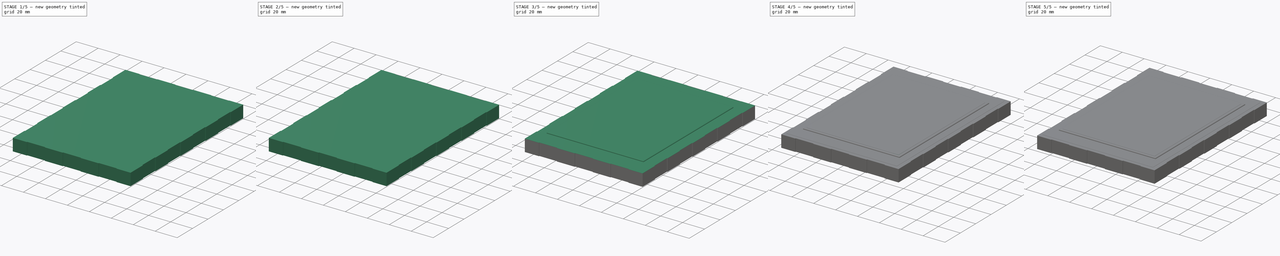
[diagram: build sequence overview — one tinted view per stage of 5, left to right]
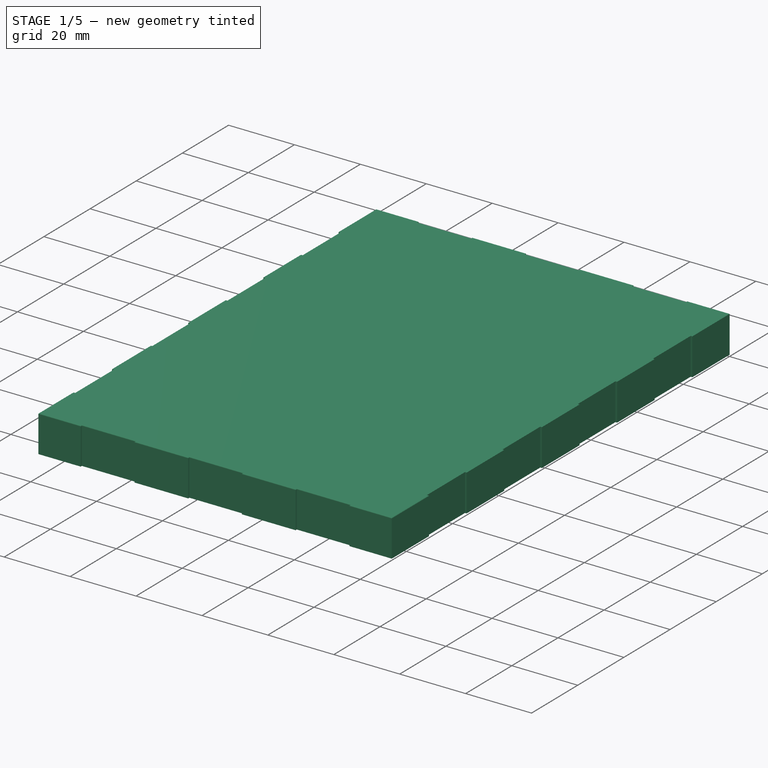
[diagram: stage 1 of 5 — iso view after this stage's code; geometry added in this stage tinted green]
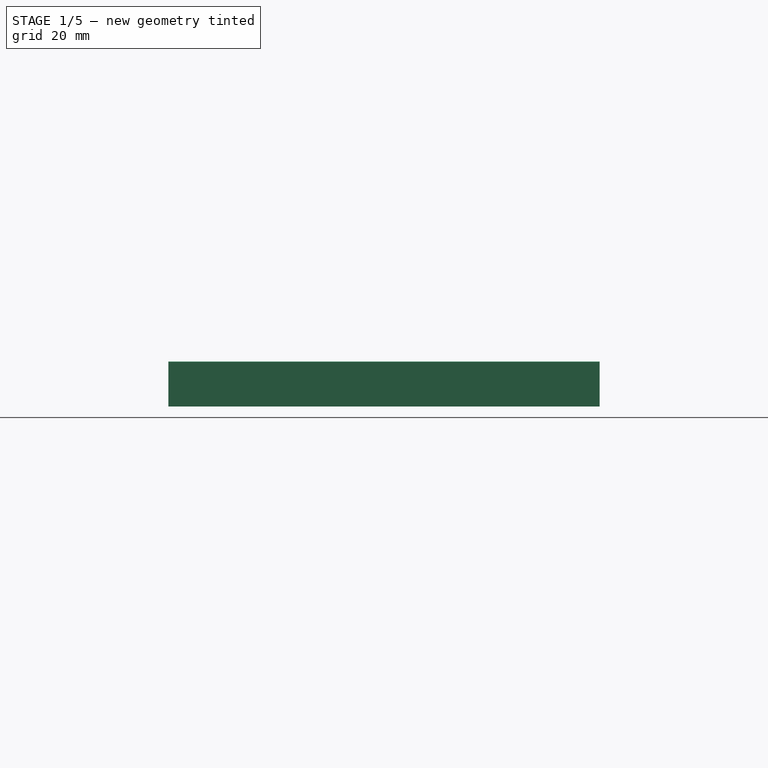
[diagram: stage 1 of 5 — front view after this stage's code; geometry added in this stage tinted green]
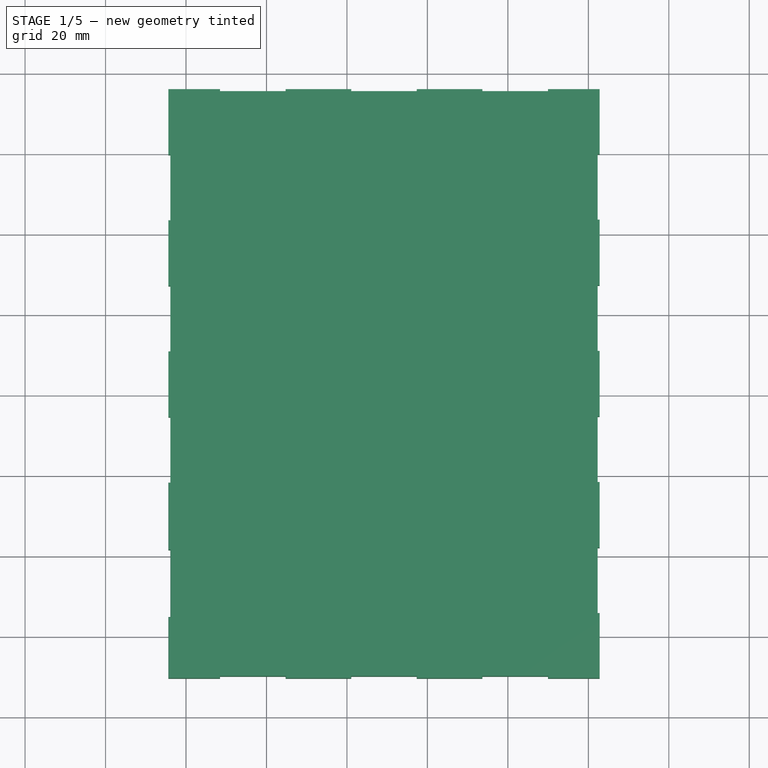
[diagram: stage 1 of 5 — top view after this stage's code; geometry added in this stage tinted green]
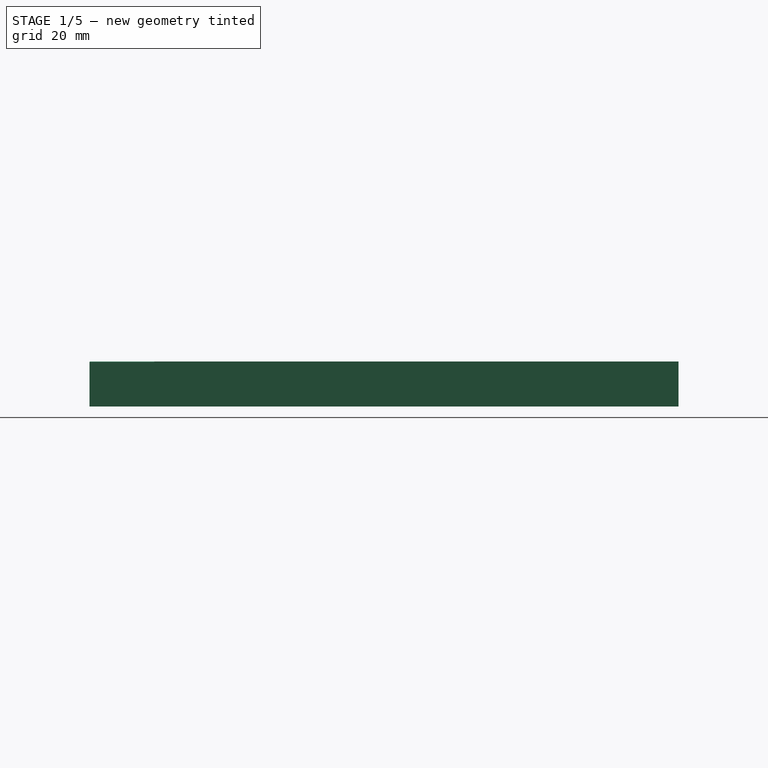
[diagram: stage 1 of 5 — right view after this stage's code; geometry added in this stage tinted green]
FCSTD DOCUMENT  (FreeCAD 0.17R11223 (Git))
Label: EA_eDIPTFT57-XXX_5
License: All rights reserved
LicenseURL: http://en.wikipedia.org/wiki/All_rights_reserved
objects: Part::Box×7, Part::Fillet×7, Sketcher::SketchObject×1, PartDesign::Pad×1, PartDesign::Body×1, Part::FeaturePython×1
note: 19 computed .brp shape members not serialized (recipe doc carries the construction recipe); baked Part::Feature solids carry a one-line shape summary decoded from their .brp

FEATURE [Sketcher::SketchObject] Sketch
  MapMode = 5
  Support = -> [XY_Plane]
  sketch-geometry (60):
    g0: LineSegment StartX=-11.54 StartY=16.05 StartZ=0 EndX=-11.54 EndY=15.55 EndZ=0
    g1: LineSegment StartX=-11.54 StartY=15.55 StartZ=0 EndX=4.76 EndY=15.55 EndZ=0
    g2: LineSegment StartX=4.76 StartY=15.55 StartZ=0 EndX=4.76 EndY=16.05 EndZ=0
    g3: LineSegment StartX=4.76 StartY=16.05 StartZ=0 EndX=21.06 EndY=16.05 EndZ=0
    g4: LineSegment StartX=21.06 StartY=16.05 StartZ=0 EndX=21.06 EndY=15.55 EndZ=0
    g5: LineSegment StartX=21.06 StartY=15.55 StartZ=0 EndX=37.36 EndY=15.55 EndZ=0
    g6: LineSegment StartX=37.36 StartY=15.55 StartZ=0 EndX=37.36 EndY=16.05 EndZ=0
    g7: LineSegment StartX=37.36 StartY=16.05 StartZ=0 EndX=53.66 EndY=16.05 EndZ=0
    g8: LineSegment StartX=53.66 StartY=16.05 StartZ=0 EndX=53.66 EndY=15.55 EndZ=0
    g9: LineSegment StartX=53.66 StartY=15.55 StartZ=0 EndX=69.96 EndY=15.55 EndZ=0
    g10: LineSegment StartX=69.96 StartY=15.55 StartZ=0 EndX=69.96 EndY=16.05 EndZ=0
    g11: LineSegment StartX=69.96 StartY=16.05 StartZ=0 EndX=82.81 EndY=16.05 EndZ=0
    g12: LineSegment StartX=82.81 StartY=16.05 StartZ=0 EndX=82.81 EndY=-0.1 EndZ=0
    g13: LineSegment StartX=82.81 StartY=-0.1 StartZ=0 EndX=82.31 EndY=-0.1 EndZ=0
    g14: LineSegment StartX=82.31 StartY=-0.1 StartZ=0 EndX=82.31 EndY=-16.4 EndZ=0
    g15: LineSegment StartX=82.31 StartY=-16.4 StartZ=0 EndX=82.81 EndY=-16.4 EndZ=0
    g16: LineSegment StartX=82.81 StartY=-16.4 StartZ=0 EndX=82.81 EndY=-32.7 EndZ=0
    g17: LineSegment StartX=82.81 StartY=-32.7 StartZ=0 EndX=82.31 EndY=-32.7 EndZ=0
    g18: LineSegment StartX=82.31 StartY=-32.7 StartZ=0 EndX=82.31 EndY=-49 EndZ=0
    g19: LineSegment StartX=82.31 StartY=-49 StartZ=0 EndX=82.81 EndY=-49 EndZ=0
    g20: LineSegment StartX=82.81 StartY=-49 StartZ=0 EndX=82.81 EndY=-65.3 EndZ=0
    g21: LineSegment StartX=82.81 StartY=-65.3 StartZ=0 EndX=82.31 EndY=-65.3 EndZ=0
    g22: LineSegment StartX=82.31 StartY=-65.3 StartZ=0 EndX=82.31 EndY=-81.6 EndZ=0
    g23: LineSegment StartX=82.31 StartY=-81.6 StartZ=0 EndX=82.81 EndY=-81.6 EndZ=0
    g24: LineSegment StartX=82.81 StartY=-81.6 StartZ=0 EndX=82.81 EndY=-97.9 EndZ=0
    g25: LineSegment StartX=82.81 StartY=-97.9 StartZ=0 EndX=82.31 EndY=-97.9 EndZ=0
    g26: LineSegment StartX=82.31 StartY=-97.9 StartZ=0 EndX=82.31 EndY=-114.2 EndZ=0
    g27: LineSegment StartX=82.31 StartY=-114.2 StartZ=0 EndX=82.81 EndY=-114.2 EndZ=0
    g28: LineSegment StartX=82.81 StartY=-114.2 StartZ=0 EndX=82.81 EndY=-130.35 EndZ=0
    g29: LineSegment StartX=82.81 StartY=-130.35 StartZ=0 EndX=69.96 EndY=-130.35 EndZ=0
    g30: LineSegment StartX=69.96 StartY=-130.35 StartZ=0 EndX=69.96 EndY=-129.85 EndZ=0
    g31: LineSegment StartX=69.96 StartY=-129.85 StartZ=0 EndX=53.66 EndY=-129.85 EndZ=0
    g32: LineSegment StartX=53.66 StartY=-129.85 StartZ=0 EndX=53.66 EndY=-130.35 EndZ=0
    g33: LineSegment StartX=53.66 StartY=-130.35 StartZ=0 EndX=37.36 EndY=-130.35 EndZ=0
    g34: LineSegment StartX=37.36 StartY=-130.35 StartZ=0 EndX=37.36 EndY=-129.85 EndZ=0
    g35: LineSegment StartX=37.36 StartY=-129.85 StartZ=0 EndX=21.06 EndY=-129.85 EndZ=0
    g36: LineSegment StartX=21.06 StartY=-129.85 StartZ=0 EndX=21.06 EndY=-130.35 EndZ=0
    g37: LineSegment StartX=21.06 StartY=-130.35 StartZ=0 EndX=4.76 EndY=-130.35 EndZ=0
    g38: LineSegment StartX=4.76 StartY=-130.35 StartZ=0 EndX=4.76 EndY=-129.85 EndZ=0
    g39: LineSegment StartX=4.76 StartY=-129.85 StartZ=0 EndX=-11.54 EndY=-129.85 EndZ=0
    g40: LineSegment StartX=-11.54 StartY=-129.85 StartZ=0 EndX=-11.54 EndY=-130.35 EndZ=0
    g41: LineSegment StartX=-11.54 StartY=-130.35 StartZ=0 EndX=-24.39 EndY=-130.35 EndZ=0
    g42: LineSegment StartX=-24.39 StartY=-130.35 StartZ=0 EndX=-24.39 EndY=-115.15 EndZ=0
    g43: LineSegment StartX=-24.39 StartY=-115.15 StartZ=0 EndX=-23.89 EndY=-115.15 EndZ=0
    g44: LineSegment StartX=-23.89 StartY=-115.15 StartZ=0 EndX=-23.89 EndY=-98.45 EndZ=0
    g45: LineSegment StartX=-23.89 StartY=-98.45 StartZ=0 EndX=-24.39 EndY=-98.45 EndZ=0
    g46: LineSegment StartX=-24.39 StartY=-98.45 StartZ=0 EndX=-24.39 EndY=-81.75 EndZ=0
    g47: LineSegment StartX=-24.39 StartY=-81.75 StartZ=0 EndX=-23.89 EndY=-81.75 EndZ=0
    g48: LineSegment StartX=-23.89 StartY=-81.75 StartZ=0 EndX=-23.89 EndY=-65.45 EndZ=0
    g49: LineSegment StartX=-23.89 StartY=-65.45 StartZ=0 EndX=-24.39 EndY=-65.45 EndZ=0
    g50: LineSegment StartX=-24.39 StartY=-65.45 StartZ=0 EndX=-24.39 EndY=-49.15 EndZ=0
    g51: LineSegment StartX=-24.39 StartY=-49.15 StartZ=0 EndX=-23.89 EndY=-49.15 EndZ=0
    g52: LineSegment StartX=-23.89 StartY=-49.15 StartZ=0 EndX=-23.89 EndY=-32.85 EndZ=0
    g53: LineSegment StartX=-23.89 StartY=-32.85 StartZ=0 EndX=-24.39 EndY=-32.85 EndZ=0
    g54: LineSegment StartX=-24.39 StartY=-32.85 StartZ=0 EndX=-24.39 EndY=-16.55 EndZ=0
    g55: LineSegment StartX=-24.39 StartY=-16.55 StartZ=0 EndX=-23.89 EndY=-16.55 EndZ=0
    g56: LineSegment StartX=-23.89 StartY=-16.55 StartZ=0 EndX=-23.89 EndY=-0.25 EndZ=0
    g57: LineSegment StartX=-23.89 StartY=-0.25 StartZ=0 EndX=-24.39 EndY=-0.25 EndZ=0
    g58: LineSegment StartX=-24.39 StartY=16.05 StartZ=0 EndX=-11.54 EndY=16.05 EndZ=0
    g59: LineSegment StartX=-24.39 StartY=-0.25 StartZ=0 EndX=-24.39 EndY=16.05 EndZ=0
  constraints (181):
    c: Vertical(g0)
    c: Coincident(g0,g1)
    c: Horizontal(g1)
    c: Coincident(g1,g2)
    c: Vertical(g2)
    c: Coincident(g2,g3)
    c: Horizontal(g3)
    c: Coincident(g3,g4)
    c: Vertical(g4)
    c: Coincident(g4,g5)
    c: Horizontal(g5)
    c: Coincident(g5,g6)
    c: Vertical(g6)
    c: Coincident(g6,g7)
    c: Horizontal(g7)
    c: Coincident(g7,g8)
    c: Vertical(g8)
    c: Coincident(g8,g9)
    c: Horizontal(g9)
    c: Coincident(g9,g10)
    c: Vertical(g10)
    c: Coincident(g10,g11)
    c: Horizontal(g11)
    c: Coincident(g11,g12)
    c: Vertical(g12)
    c: Coincident(g12,g13)
    c: Horizontal(g13)
    c: Coincident(g13,g14)
    c: Vertical(g14)
    c: Coincident(g14,g15)
    c: Horizontal(g15)
    c: Coincident(g15,g16)
    c: Vertical(g16)
    c: Coincident(g16,g17)
    c: Horizontal(g17)
    c: Coincident(g17,g18)
    c: Vertical(g18)
    c: Coincident(g18,g19)
    c: Horizontal(g19)
    c: Coincident(g19,g20)
    c: Vertical(g20)
    c: Coincident(g20,g21)
    c: Horizontal(g21)
    c: Coincident(g21,g22)
    c: Vertical(g22)
    c: Coincident(g22,g23)
    c: Horizontal(g23)
    c: Coincident(g23,g24)
    c: Vertical(g24)
    c: Coincident(g24,g25)
    c: Horizontal(g25)
    c: Coincident(g25,g26)
    c: Vertical(g26)
    c: Coincident(g26,g27)
    c: Horizontal(g27)
    c: Coincident(g27,g28)
    c: Vertical(g28)
    c: Coincident(g28,g29)
    c: Horizontal(g29)
    c: Coincident(g29,g30)
    c: Vertical(g30)
    c: Coincident(g30,g31)
    c: Horizontal(g31)
    c: Coincident(g31,g32)
    c: Vertical(g32)
    c: Coincident(g32,g33)
    c: Horizontal(g33)
    c: Coincident(g33,g34)
    c: Vertical(g34)
    c: Coincident(g34,g35)
    c: Horizontal(g35)
    c: Coincident(g35,g36)
    c: Vertical(g36)
    c: Coincident(g36,g37)
    c: Horizontal(g37)
    c: Coincident(g37,g38)
    c: Vertical(g38)
    c: Coincident(g38,g39)
    c: Horizontal(g39)
    c: Coincident(g39,g40)
    c: Vertical(g40)
    c: Coincident(g40,g41)
    c: Horizontal(g41)
    c: Coincident(g41,g42)
    c: Vertical(g42)
    c: Coincident(g42,g43)
    c: Horizontal(g43)
    c: Coincident(g43,g44)
    c: Vertical(g44)
    c: Coincident(g44,g45)
    c: Horizontal(g45)
    c: Coincident(g45,g46)
    c: Vertical(g46)
    c: Coincident(g46,g47)
    c: Horizontal(g47)
    c: Coincident(g47,g48)
    c: Vertical(g48)
    c: Coincident(g48,g49)
    c: Horizontal(g49)
    c: Coincident(g49,g50)
    c: Vertical(g50)
    c: Coincident(g50,g51)
    c: Horizontal(g51)
    c: Coincident(g51,g52)
    c: Vertical(g52)
    c: Coincident(g52,g53)
    c: Horizontal(g53)
    c: Coincident(g53,g54)
    c: Vertical(g54)
    c: Coincident(g54,g55)
    c: Horizontal(g55)
    c: Coincident(g55,g56)
    c: Vertical(g56)
    c: Coincident(g56,g57)
    c: Horizontal(g57)
    c: DistanceX(g41,g28) = 107.2
    c: DistanceY(g28,g11) = 146.4
    c: DistanceX(g27,g27) = 0.5
    c: DistanceY(g26,g26) = 16.3
    c: DistanceX(g25,g25) = 0.5
    c: DistanceY(g24,g23) = 16.3
    c: DistanceX(g23,g23) = 0.5
    c: DistanceX(g21,g21) = 0.5
    c: DistanceY(g22,g22) = 16.3
    c: DistanceY(g20,g20) = 16.3
    c: DistanceX(g19,g19) = 0.5
    c: DistanceY(g18,g18) = 16.3
    c: DistanceX(g17,g17) = 0.5
    c: DistanceY(g16,g16) = 16.3
    c: DistanceX(g15,g15) = 0.5
    c: DistanceY(g14,g14) = 16.3
    c: DistanceY(g12,g12) = 16.15
    c: DistanceY(g30,g30) = 0.5
    c: DistanceY(g32,g32) = 0.5
    c: DistanceX(g31,g31) = 16.3
    c: DistanceX(g33,g33) = 16.3
    c: DistanceX(g35,g35) = 16.3
    c: DistanceY(g34,g34) = 0.5
    c: DistanceY(g36,g36) = 0.5
    c: DistanceX(g37,g37) = 16.3
    c: DistanceY(g38,g38) = 0.5
    c: DistanceY(g40,g40) = 0.5
    c: DistanceX(g39,g39) = 16.3
    c: DistanceX(g41,g41) = 12.85
    c: DistanceY(g44,g44) = 16.7
    c: DistanceY(g46,g46) = 16.7
    c: DistanceY(g48,g48) = 16.3
    c: DistanceY(g50,g50) = 16.3
    c: DistanceY(g52,g52) = 16.3
    c: DistanceY(g54,g54) = 16.3
    c: DistanceY(g56,g56) = 16.3
    c: DistanceY(g57,g58) = 16.3
    c: DistanceY(g41,g58) = 146.4
    c: DistanceY(g10,g10) = 0.5
    c: DistanceX(g9,g9) = 16.3
    c: DistanceY(g8,g8) = 0.5
    c: DistanceY(g6,g6) = 0.5
    c: DistanceY(g4,g4) = 0.5
    c: DistanceY(g2,g2) = 0.5
    c: DistanceX(g7,g7) = 16.3
    c: DistanceX(g5,g5) = 16.3
    c: DistanceX(g3,g3) = 16.3
    c: DistanceX(g1,g1) = 16.3
    c: DistanceY(g0,g0) = 0.5
    c: Coincident(g58,g0)
    c: DistanceY(g-1,g58) = 16.05
    c: DistanceX(g13,g13) = 0.5
    c: DistanceX(g43,g43) = 0.5
    c: DistanceX(g45,g45) = 0.5
    c: DistanceX(g47,g47) = 0.5
    c: DistanceX(g49,g49) = 0.5
    c: DistanceX(g51,g51) = 0.5
    c: DistanceX(g53,g53) = 0.5
    c: DistanceX(g55,g55) = 0.5
    c: DistanceX(g57,g57) = 0.5
    c: Coincident(g59,g57)
    c: Vertical(g59)
    c: DistanceX(g59,g58) = 0
    c: DistanceY(g59,g58) = 0
    c: DistanceX(g58,g58) = 12.85
    c: DistanceX(g58,g-1) = 24.39
FEATURE [PartDesign::Pad] Pad
  Length = 11.2
  Length2 = 100
  Profile = -> Sketch
  Type = 0
FEATURE [Part::Fillet] Fillet001
  Base = -> Pad
  Edges = 8 edges r=0.2: [Edge121,Edge124,Edge127,Edge130,Edge133,Edge136,Edge139,Edge142]
FEATURE [Part::Fillet] Fillet002
  Base = -> Fillet001
  Edges = 12 edges r=0.2: [Edge6,Edge88,Edge90,Edge92,Edge94,Edge96,Edge98,Edge100,Edge102,Edge104,Edge106,Edge108]
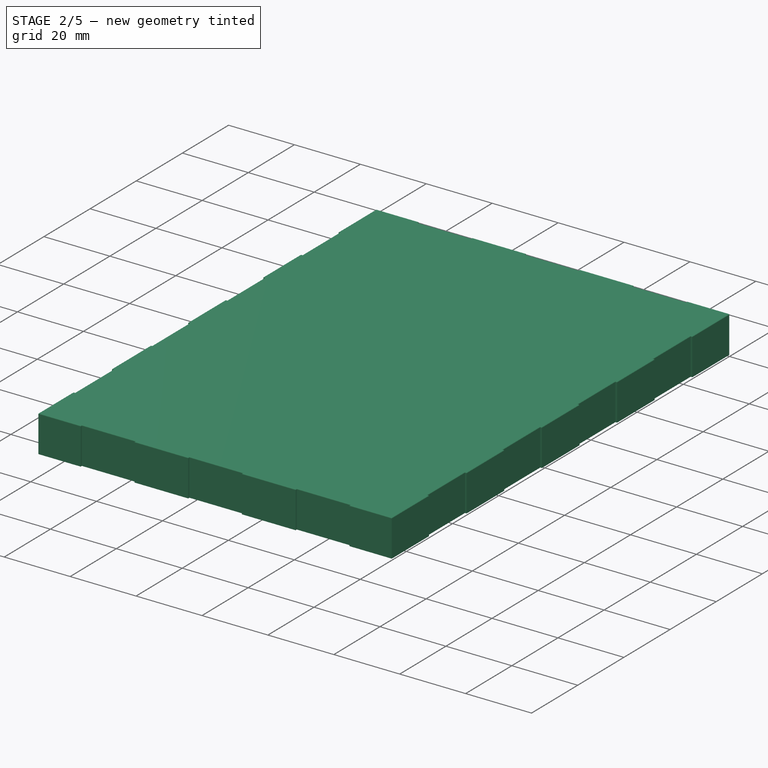
[diagram: stage 2 of 5 — iso view after this stage's code; geometry added in this stage tinted green]
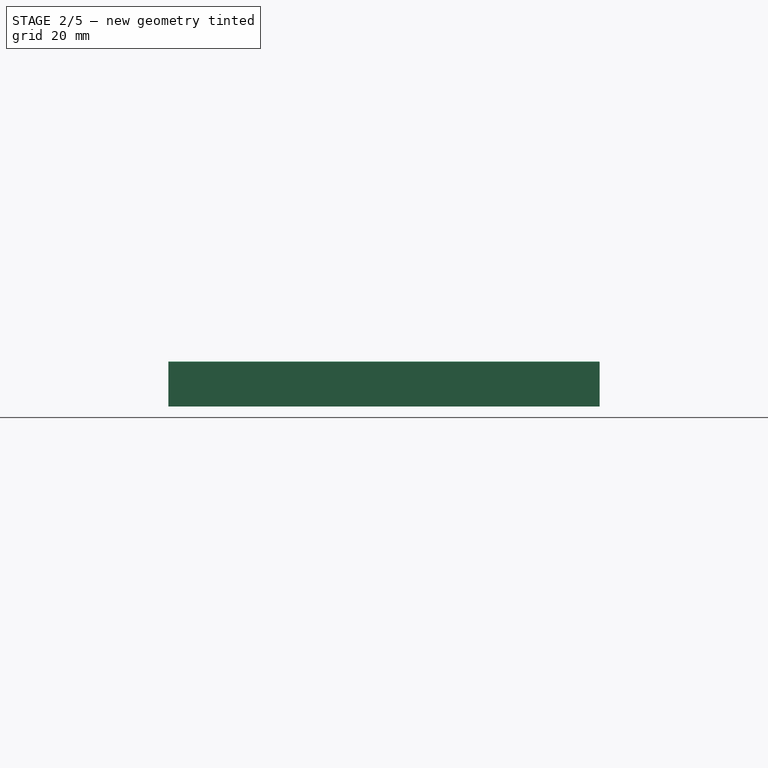
[diagram: stage 2 of 5 — front view after this stage's code; geometry added in this stage tinted green]
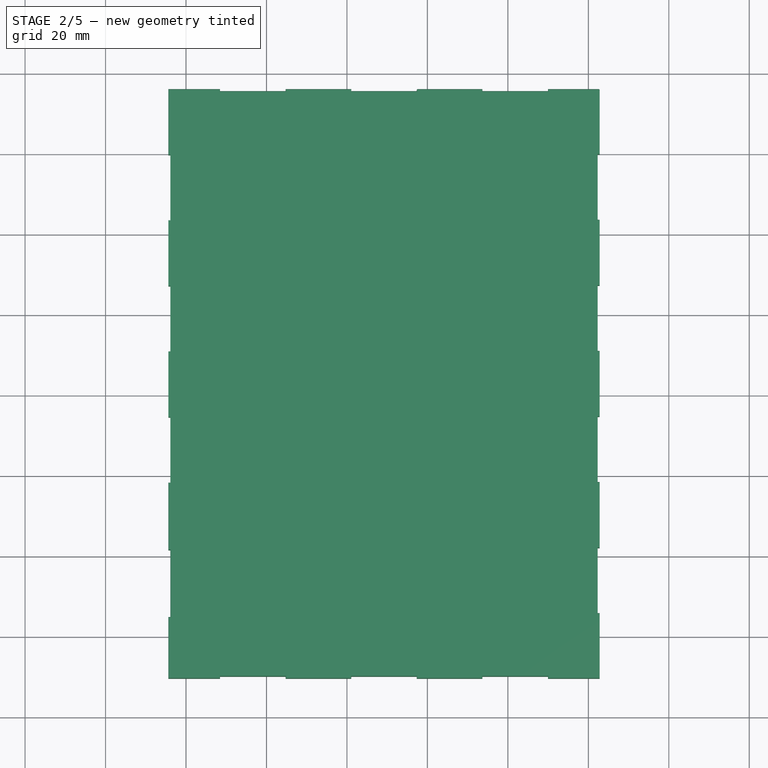
[diagram: stage 2 of 5 — top view after this stage's code; geometry added in this stage tinted green]
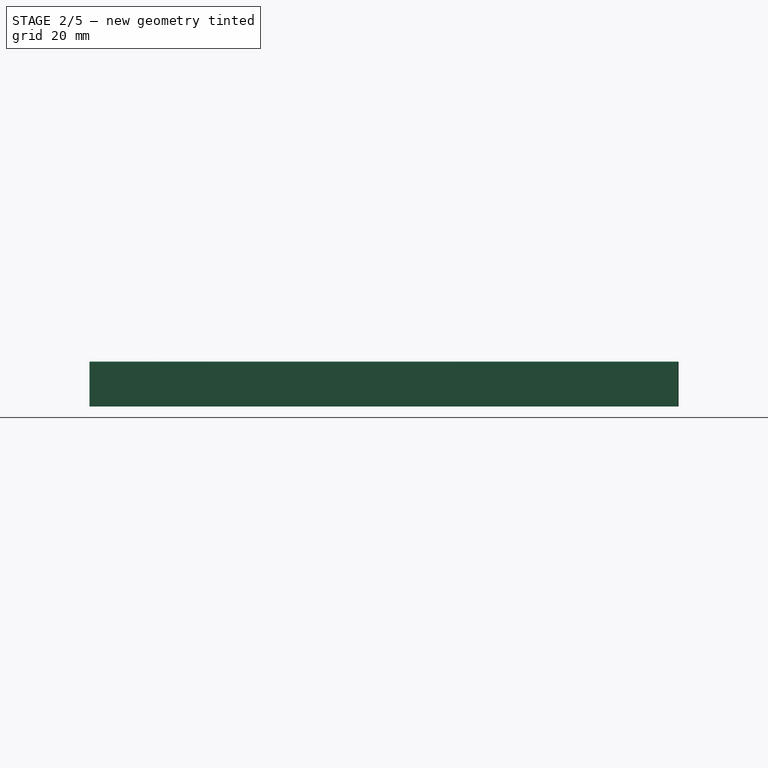
[diagram: stage 2 of 5 — right view after this stage's code; geometry added in this stage tinted green]
FEATURE [Part::Fillet] Fillet003
  Base = -> Fillet002
  Edges = 15 edges r=0.2: [Edge103,Edge105,Edge107,Edge109,Edge111,Edge113,Edge115,Edge117,Edge119,Edge121,Edge123,Edge125,Edge127,Edge129,Edge131]
FEATURE [Part::Fillet] Fillet004
  Base = -> Fillet003
  Edges = 5 edges r=0.2: [Edge1,Edge3,Edge5,Edge7,Edge9]
FEATURE [Part::Fillet] Fillet005
  Base = -> Fillet004
  Edges = 9 edges r=0.2: [Edge12,Edge14,Edge16,Edge18,Edge20,Edge22,Edge24,Edge26,Edge28]
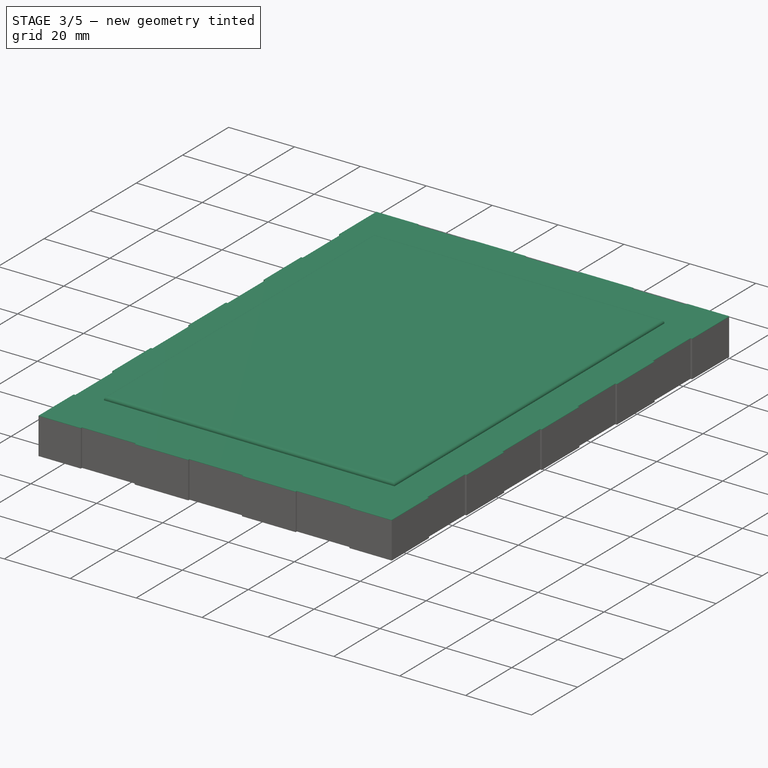
[diagram: stage 3 of 5 — iso view after this stage's code; geometry added in this stage tinted green]
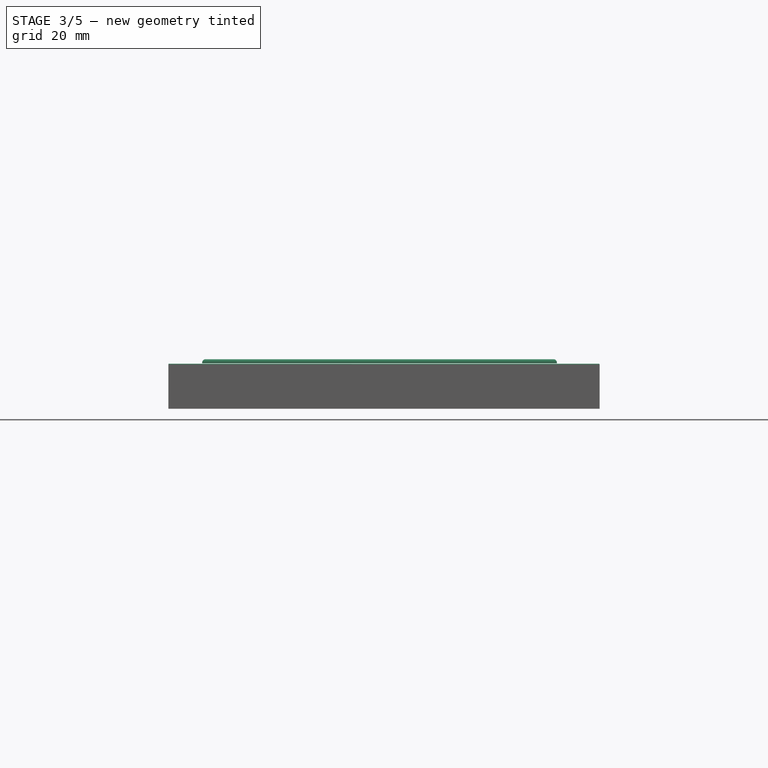
[diagram: stage 3 of 5 — front view after this stage's code; geometry added in this stage tinted green]
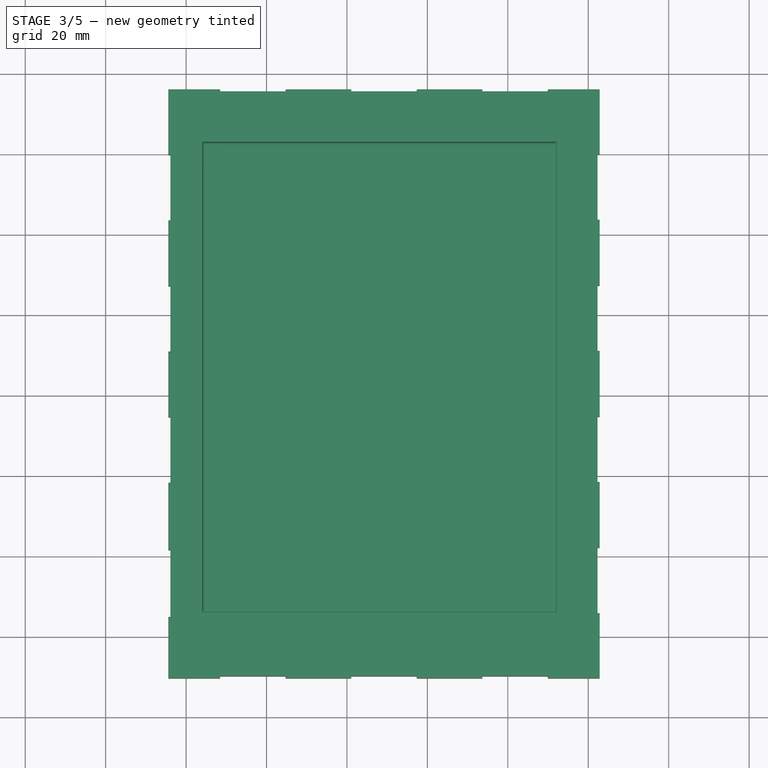
[diagram: stage 3 of 5 — top view after this stage's code; geometry added in this stage tinted green]
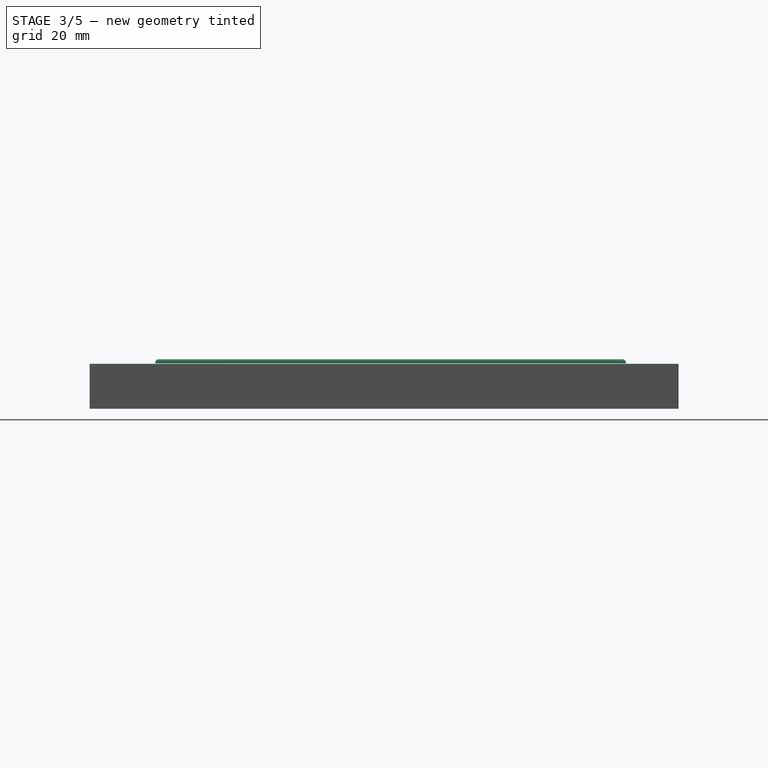
[diagram: stage 3 of 5 — right view after this stage's code; geometry added in this stage tinted green]
FEATURE [Part::Box] Box004  label="DisplayFrame"
  AttacherType = Attacher::AttachEngine3D
  Height = 1
  Length = 88.2
  Placement = pos=(-16,-114,11.3) rot=(0,0,1;0rad)
  Width = 117
FEATURE [Part::Fillet] Fillet
  Base = -> Box004
  Edges = 4 edges r=0.8: [Edge2,Edge6,Edge10,Edge12]
  Placement = pos=(0,0,2) rot=(0,0,1;0rad)
FEATURE [Part::Box] Box006  label="Pin1Marker"
  AttacherType = Attacher::AttachEngine3D
  Height = 0.3
  Length = 5
  Placement = pos=(-12,1.1,14) rot=(0,0,1;0rad)
  Width = 1
FEATURE [Part::Fillet] Fillet006
  Base = -> Fillet005
  Edges = 11 edges r=0.2: [Edge20,Edge22,Edge24,Edge26,Edge28,Edge30,Edge32,Edge34,Edge36,Edge38,Edge40]
  Placement = pos=(0,0,2) rot=(0,0,1;0rad)
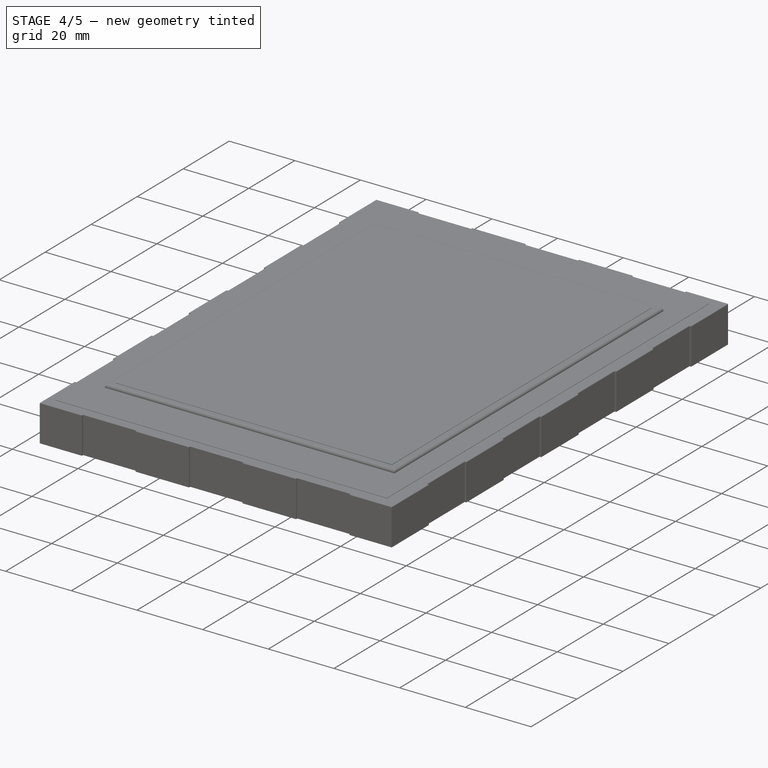
[diagram: stage 4 of 5 — iso view after this stage's code; geometry added in this stage tinted green]
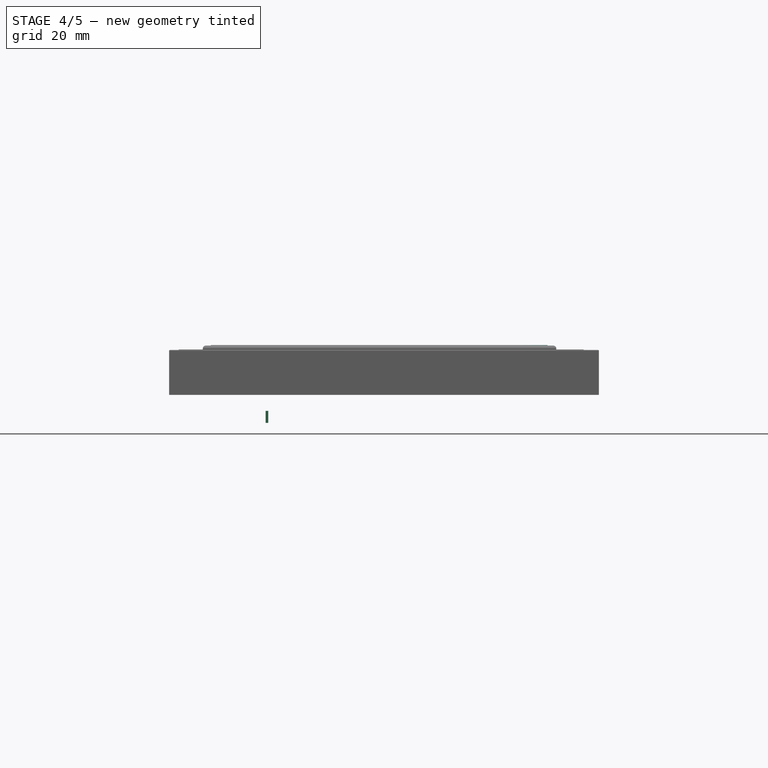
[diagram: stage 4 of 5 — front view after this stage's code; geometry added in this stage tinted green]
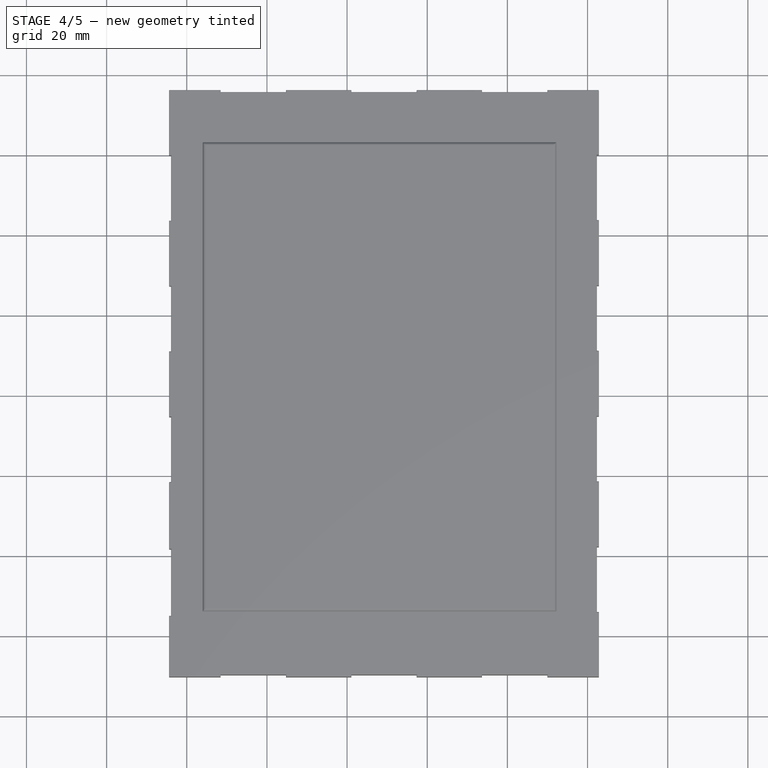
[diagram: stage 4 of 5 — top view after this stage's code; geometry added in this stage tinted green]
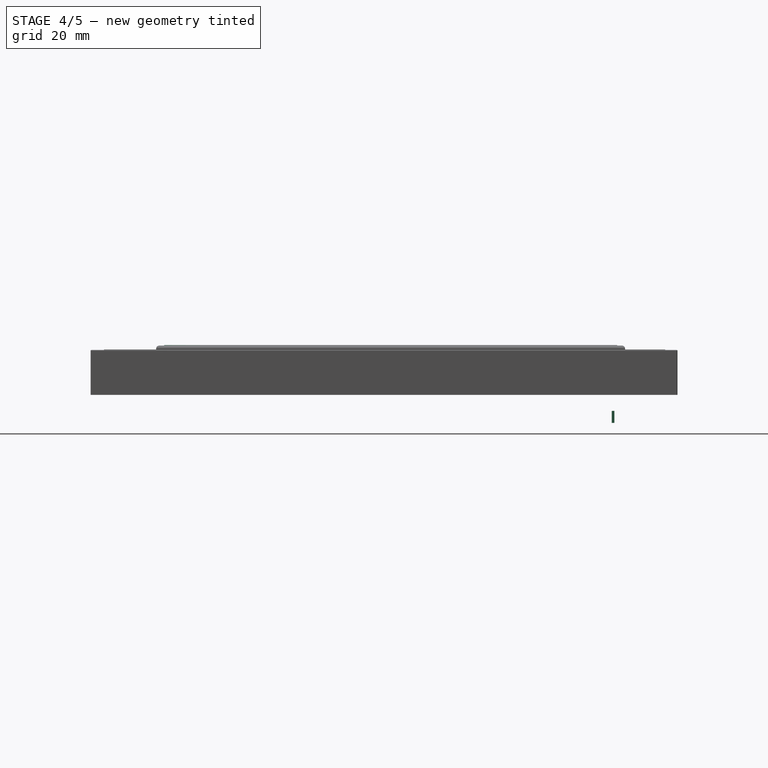
[diagram: stage 4 of 5 — right view after this stage's code; geometry added in this stage tinted green]
FEATURE [Part::Box] Box002  label="Pin"
  AttacherType = Attacher::AttachEngine3D
  Height = 3
  Length = 0.64
  Placement = pos=(-0.32,-0.32,-5) rot=(0,0,1;0rad)
  Width = 0.64
FEATURE [Part::Box] Box003  label="DisplayBase"
  AttacherType = Attacher::AttachEngine3D
  Height = 0.2
  Length = 101
  Placement = pos=(-22,-127,13.1) rot=(0,0,1;0rad)
  Width = 140
FEATURE [Part::Box] Box005  label="Display"
  AttacherType = Attacher::AttachEngine3D
  Height = 1
  Length = 84
  Placement = pos=(-14,-112,13.4) rot=(0,0,1;0rad)
  Width = 113
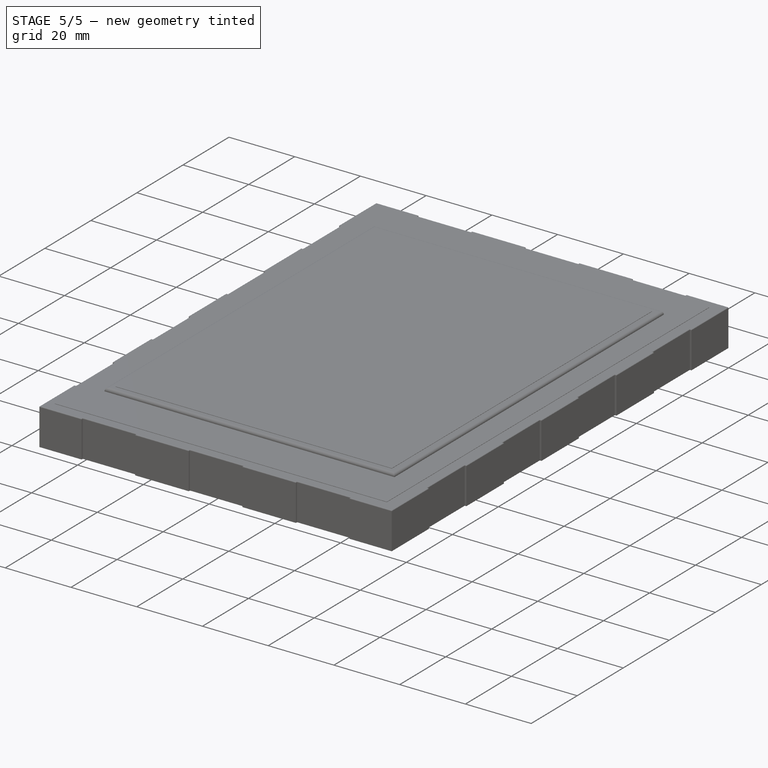
[diagram: stage 5 of 5 — iso view after this stage's code; geometry added in this stage tinted green]
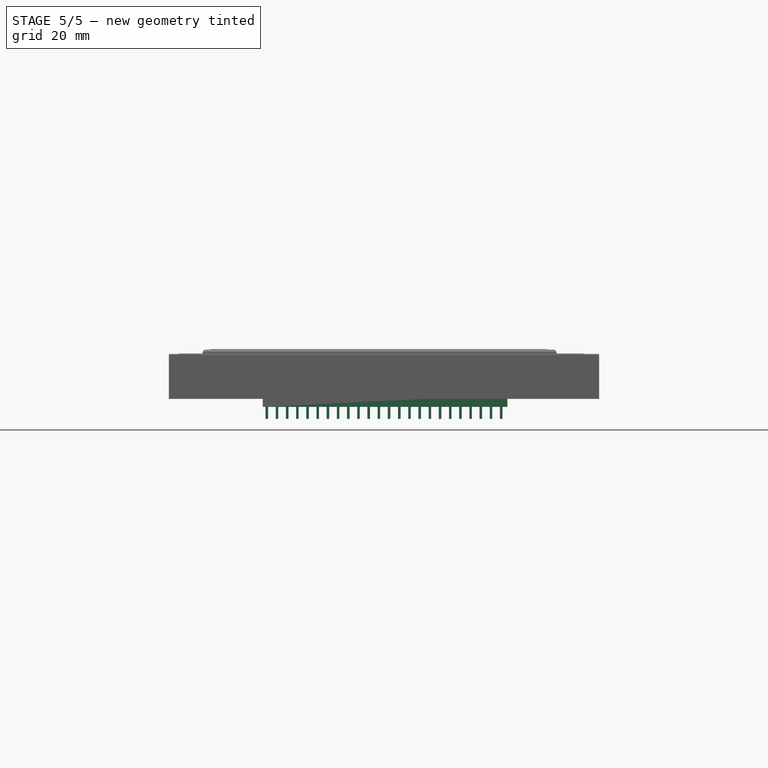
[diagram: stage 5 of 5 — front view after this stage's code; geometry added in this stage tinted green]
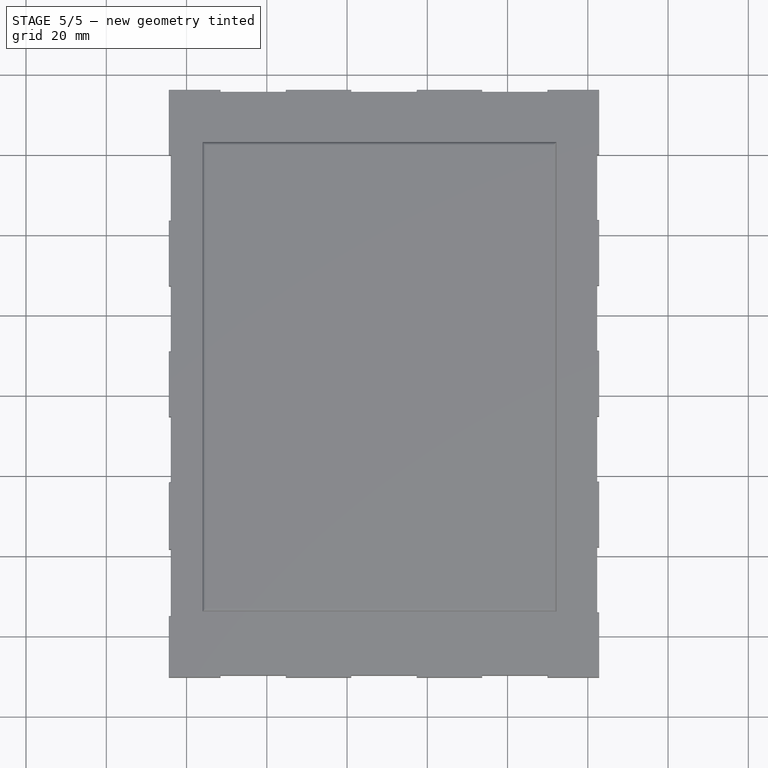
[diagram: stage 5 of 5 — top view after this stage's code; geometry added in this stage tinted green]
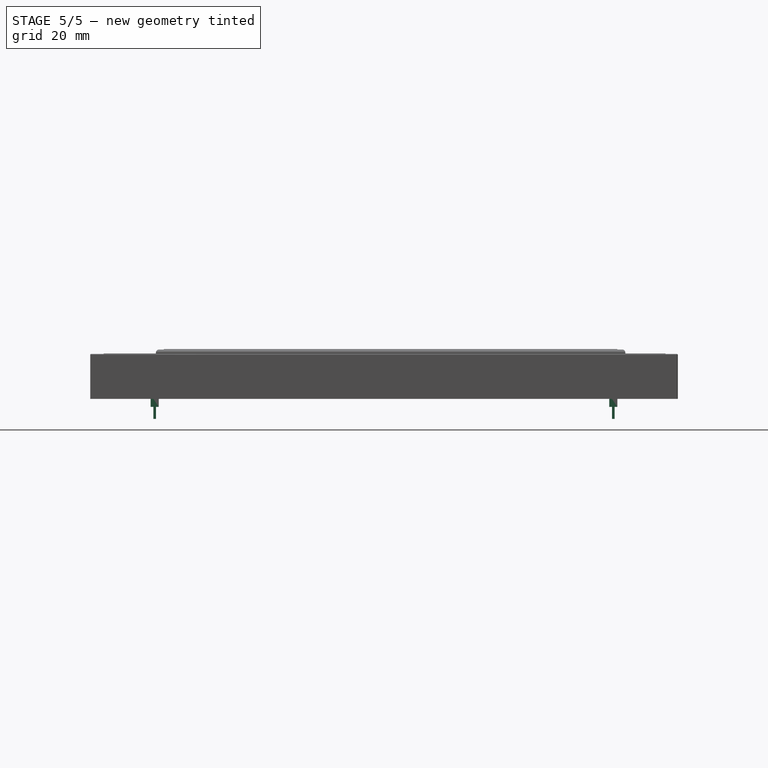
[diagram: stage 5 of 5 — right view after this stage's code; geometry added in this stage tinted green]
FEATURE [PartDesign::Body] Body
  Group = -> [Sketch,Pad]
  Origin = -> BodyOrigin
  Tip = -> Pad
FEATURE [Part::Box] Box  label="Kub"
  AttacherType = Attacher::AttachEngine3D
  Height = 3
  Length = 60.96
  Placement = pos=(-1,-1,0) rot=(0,0,1;0rad)
  Width = 2
FEATURE [Part::Box] Box001  label="Kub001"
  AttacherType = Attacher::AttachEngine3D
  Height = 3
  Length = 60.96
  Placement = pos=(-1,-115.3,0) rot=(0,0,1;0rad)
  Width = 2
FEATURE [Part::FeaturePython] Array  # Draft array (typed FeaturePython)
  Angle = 360
  ArrayType = 0
  Axis = (0,0,1)
  Base = -> Box002
  Center = (0,0,0)
  Fuse = false
  IntervalAxis = (0,0,0)
  IntervalX = (2.54,0,0)
  IntervalY = (0,-114.3,0)
  IntervalZ = (0,0,0)
  NumberPolar = 1
  NumberX = 24
  NumberY = 2
  NumberZ = 1
  Placement = pos=(0,0,2) rot=(0,0,1;0rad)
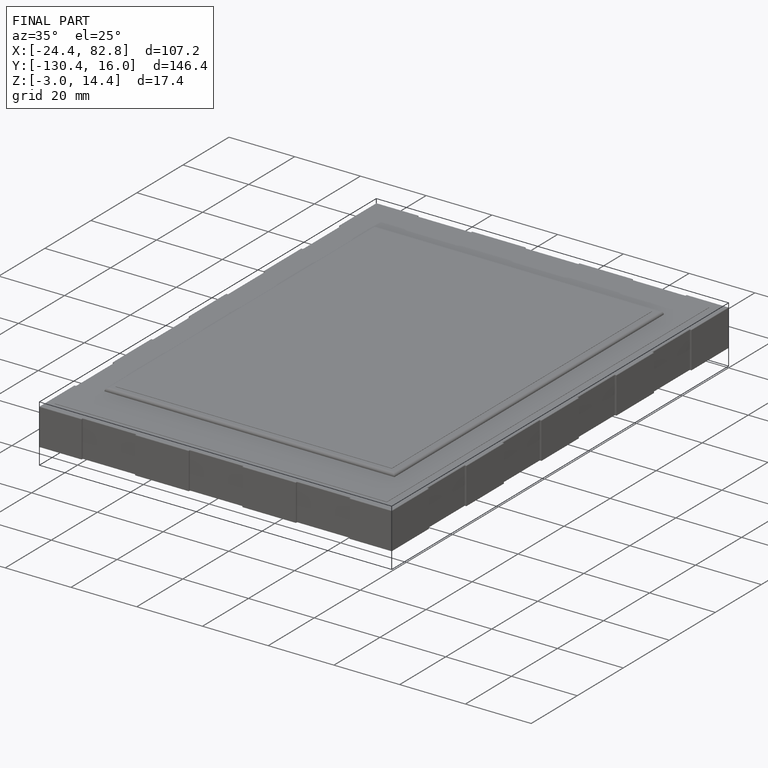
[diagram: finished part — iso view with bounding-box wireframe]
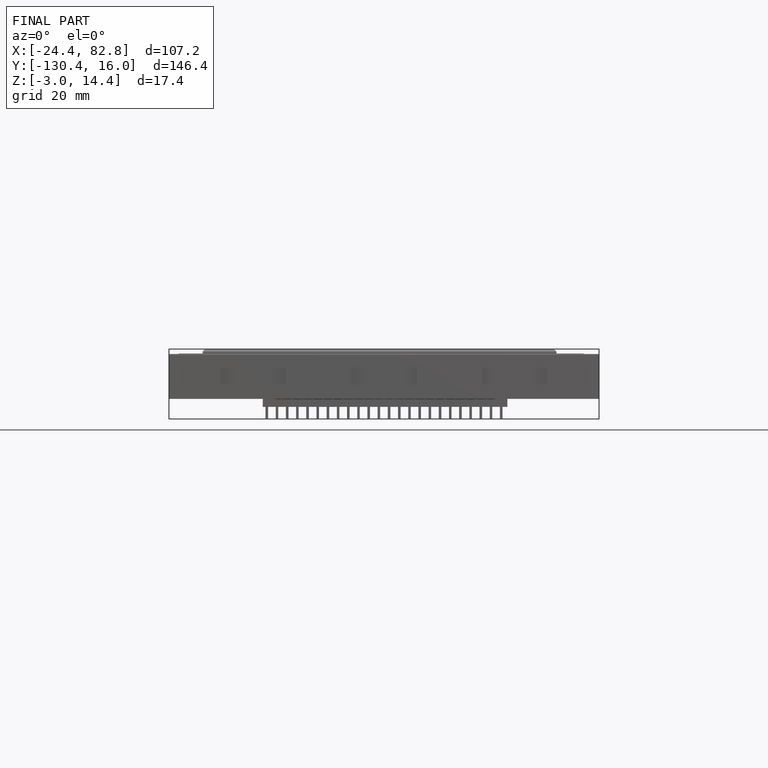
[diagram: finished part — front view with bounding-box wireframe]
